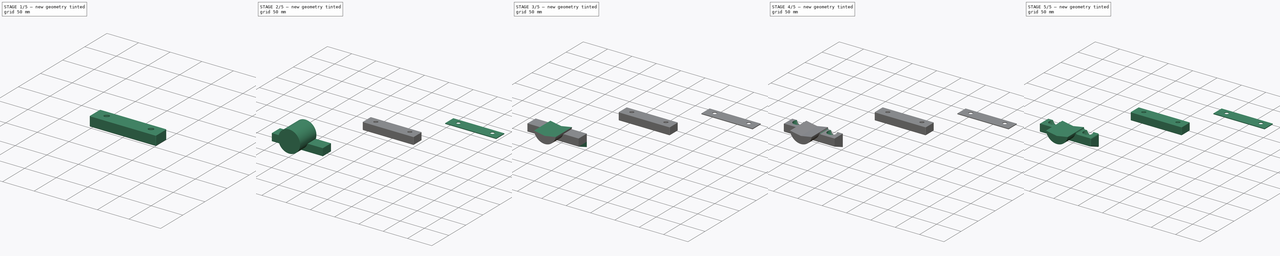
[diagram: build sequence overview — one tinted view per stage of 5, left to right]
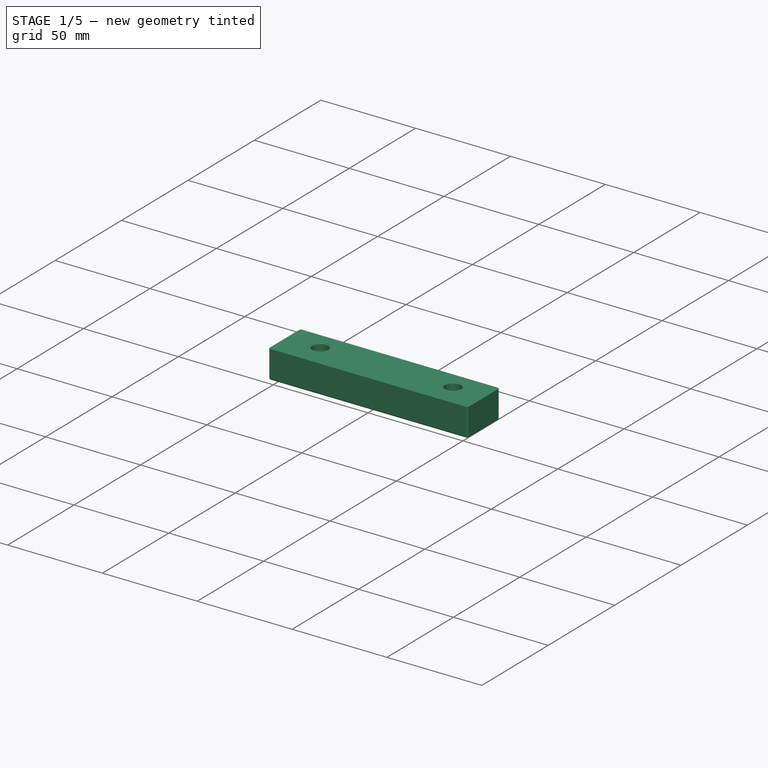
[diagram: stage 1 of 5 — iso view after this stage's code; geometry added in this stage tinted green]
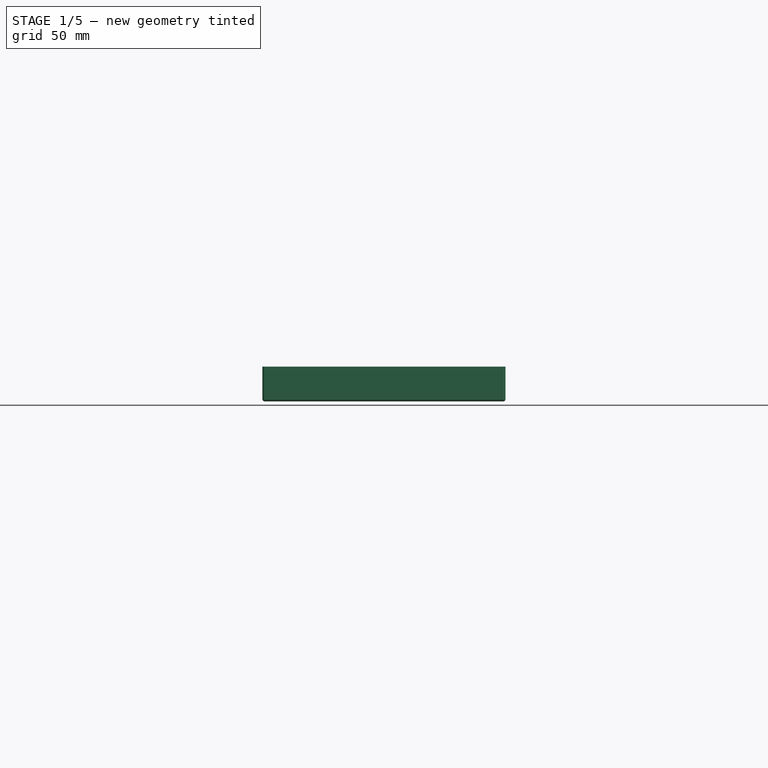
[diagram: stage 1 of 5 — front view after this stage's code; geometry added in this stage tinted green]
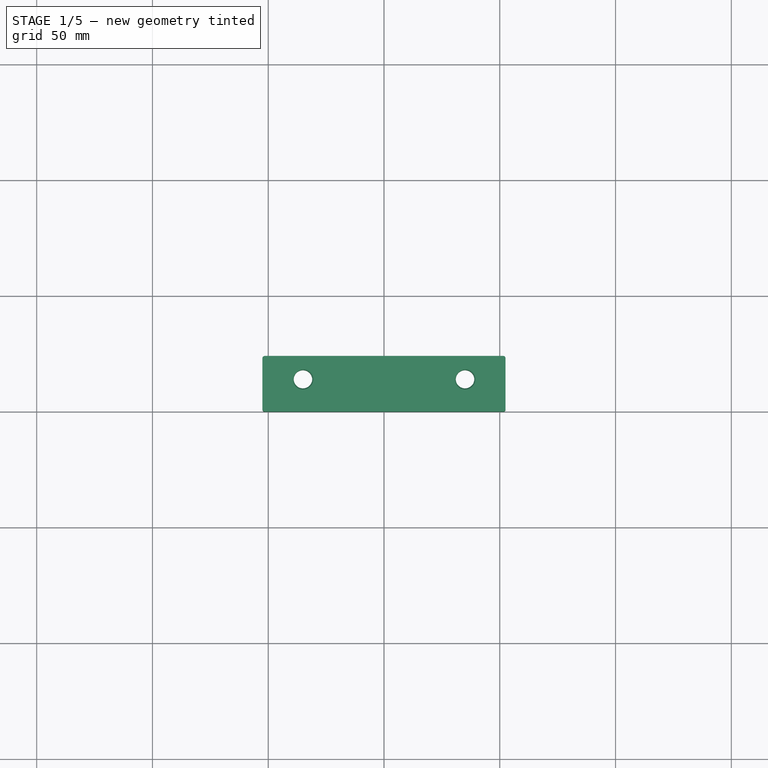
[diagram: stage 1 of 5 — top view after this stage's code; geometry added in this stage tinted green]
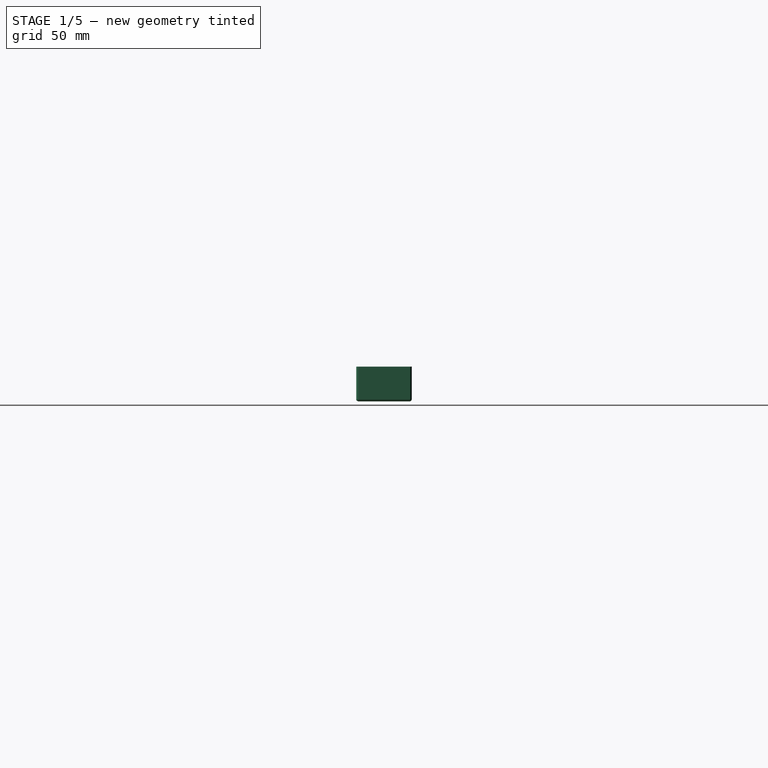
[diagram: stage 1 of 5 — right view after this stage's code; geometry added in this stage tinted green]
FCSTD DOCUMENT  (FreeCAD 2022.625R14555 (Git shallow))
Label: mast_mount
License: All rights reserved
LicenseURL: http://en.wikipedia.org/wiki/All_rights_reserved
objects: Sketcher::SketchObject×8, PartDesign::Pad×7, PartDesign::Fillet×4, PartDesign::Chamfer×3, PartDesign::Body×3, Spreadsheet::Sheet×1, PartDesign::Hole×1
note: 56 computed .brp shape members not serialized (recipe doc carries the construction recipe); baked Part::Feature solids carry a one-line shape summary decoded from their .brp

FEATURE [PartDesign::Body] Body  label="mast_mount"
  AutoGroupSolids = false
  ClaimAllChildren = false
  ExportMode = 0
  Group = -> [Sketch,Pad,Sketch001,Pad001,Sketch002,Pad002,Sketch003,Pad003,Sketch004,Pad004,Sketch005,Hole,Fillet,Fillet001,Fillet002,Chamfer,Chamfer001]
  Origin = -> Origin
  Tip = -> Chamfer001
  TreeRank = 11
  _ExportChildren = -> [Pad,Pad001,Pad002,Pad003,Pad004,Hole,Fillet,Fillet001,Fillet002,Chamfer,Chamfer001]
  _GroupVersion = 1
FEATURE [Sketcher::SketchObject] Sketch006
  ArcFitTolerance = 1e-06
  AttachmentOffset = pos=(100,100,0) rot=(0,0,1;0rad)
  AttachmentSupport = -> [XY_Plane001]
  FullyConstrained = true
  MapMode = 5
  Placement = pos=(100,100,0) rot=(0,0,1;0rad)
  Support = -> [XY_Plane001]
  TreeRank = 39
  expr: Constraints[12] = <<measurements>>.screw_distance_top
  expr: Constraints[13] = <<measurements>>.screw_distance_x
  expr: Constraints[14] = <<measurements>>.screw_dia
  expr: Constraints[8] = <<measurements>>.mount_y
  expr: Constraints[9] = <<measurements>>.mount_x
  sketch-geometry (6):
    g0: LineSegment StartX=-52.5 StartY=0 StartZ=0 EndX=52.5 EndY=0 EndZ=0
    g1: LineSegment StartX=52.5 StartY=0 StartZ=0 EndX=52.5 EndY=24 EndZ=0
    g2: LineSegment StartX=52.5 StartY=24 StartZ=0 EndX=-52.5 EndY=24 EndZ=0
    g3: LineSegment StartX=-52.5 StartY=24 StartZ=0 EndX=-52.5 EndY=0 EndZ=0
    g4: Circle CenterX=-35 CenterY=14 CenterZ=0 NormalX=0 NormalY=0 NormalZ=1 AngleXU=0 Radius=4
    g5: Circle CenterX=35 CenterY=14 CenterZ=0 NormalX=0 NormalY=0 NormalZ=1 AngleXU=0 Radius=4
  constraints (16):
    c: Coincident(g0,g1)
    c: Coincident(g1,g2)
    c: Coincident(g2,g3)
    c: Coincident(g3,g0)
    c: Horizontal(g0)
    c: Horizontal(g2)
    c: Vertical(g1)
    c: Vertical(g3)
    c: DistanceY(g1,g1) = 24
    c: DistanceX(g2,g2) = 105
    c: Symmetric(g0,g0,g-1)
    c: Symmetric(g4,g5,g-2)
    c: DistanceY(g5,g1) = 10
    c: DistanceX(g4,g5) = 70
    c: Diameter(g5) = 8
    c: Equal(g4,g5)
FEATURE [PartDesign::Pad] Pad005
  AddSubType = 0
  AlongSketchNormal = false
  CheckUpToFaceLimits = true
  ClaimChildren = false
  Direction = (0,0,1)
  Fit = 0
  FitJoin = 0
  InnerFit = 0
  InnerFitJoin = 0
  InnerTaperAngle = 0
  InnerTaperAngleRev = 0
  Length = 15
  Length2 = 100
  Linearize = true
  NewSolid = false
  Profile = -> Sketch006
  Suppress = false
  TreeRank = 40
  Type = 0
  _ProfileBasedVersion = 1
FEATURE [PartDesign::Chamfer] Chamfer002
  AddSubType = 0
  Angle = 45
  Base = -> Pad005 [Edge17,Edge14,Edge15,Edge18]
  BaseFeature = -> Pad005
  ChamferType = 0
  FlipDirection = false
  NewSolid = false
  Size = 0.5
  Size2 = 1
  SupportTransform = false
  Suppress = false
  TreeRank = 41
FEATURE [PartDesign::Body] Body002
  AutoGroupSolids = false
  ClaimAllChildren = false
  ExportMode = 0
  Group = -> [Sketch007,Pad006]
  Origin = -> Origin002
  Tip = -> Pad006
  TreeRank = 52
  _ExportChildren = -> [Pad006]
  _GroupVersion = 1
FEATURE [PartDesign::Fillet] Fillet003
  AddSubType = 0
  Base = -> Chamfer002 [Edge21,Edge22,Edge10,Edge9,Edge11,Edge20,Edge23,Edge12]
  BaseFeature = -> Chamfer002
  NewSolid = false
  Radius = 1
  SupportTransform = false
  Suppress = false
  TreeRank = 55
FEATURE [PartDesign::Body] Body001  label="m8_rod_mount_helper"
  AutoGroupSolids = false
  ClaimAllChildren = false
  ExportMode = 0
  Group = -> [Sketch006,Pad005,Chamfer002,Fillet003]
  Origin = -> Origin001
  Tip = -> Fillet003
  TreeRank = 38
  _ExportChildren = -> [Pad005,Chamfer002,Fillet003]
  _GroupVersion = 1
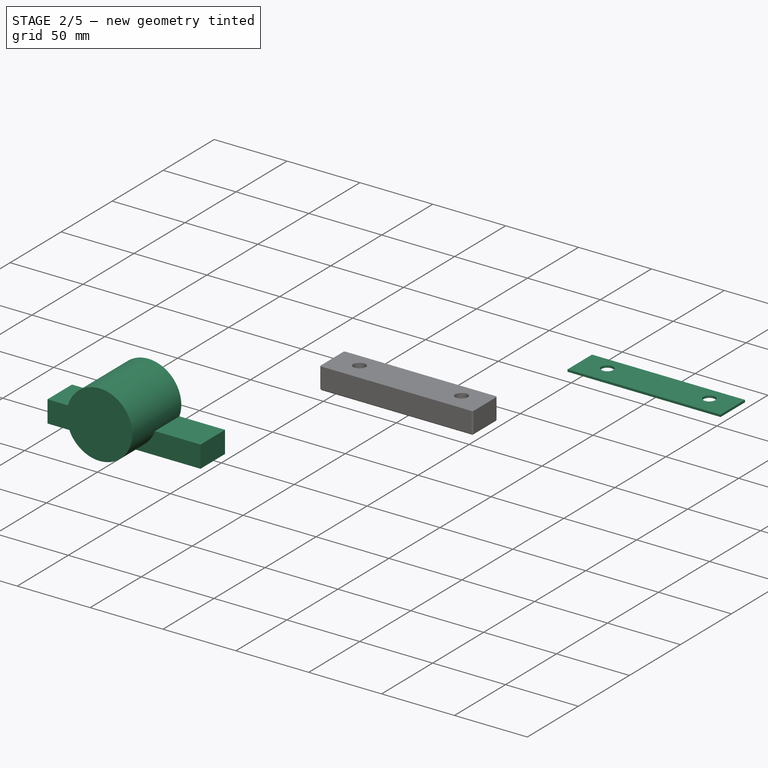
[diagram: stage 2 of 5 — iso view after this stage's code; geometry added in this stage tinted green]
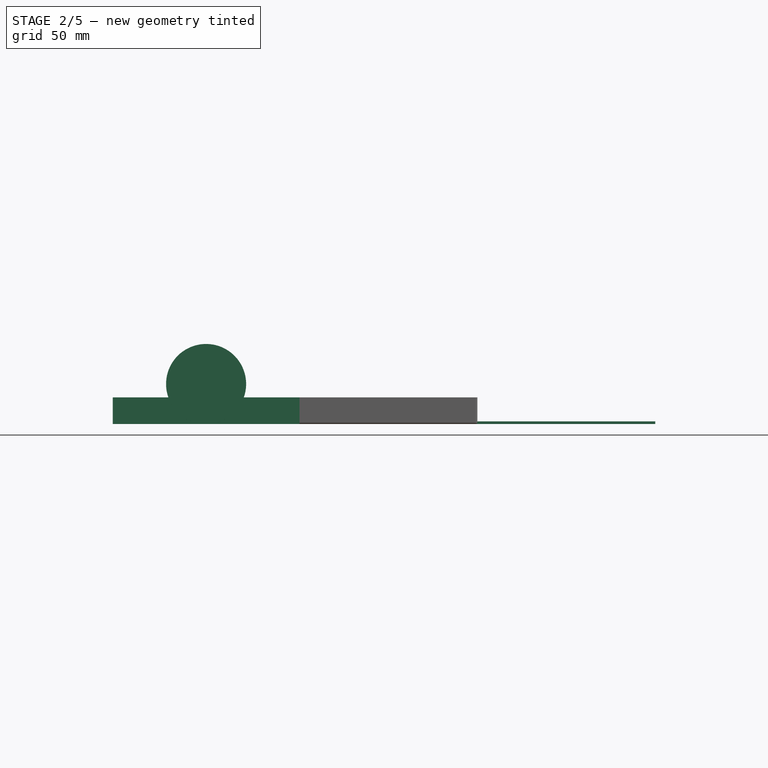
[diagram: stage 2 of 5 — front view after this stage's code; geometry added in this stage tinted green]
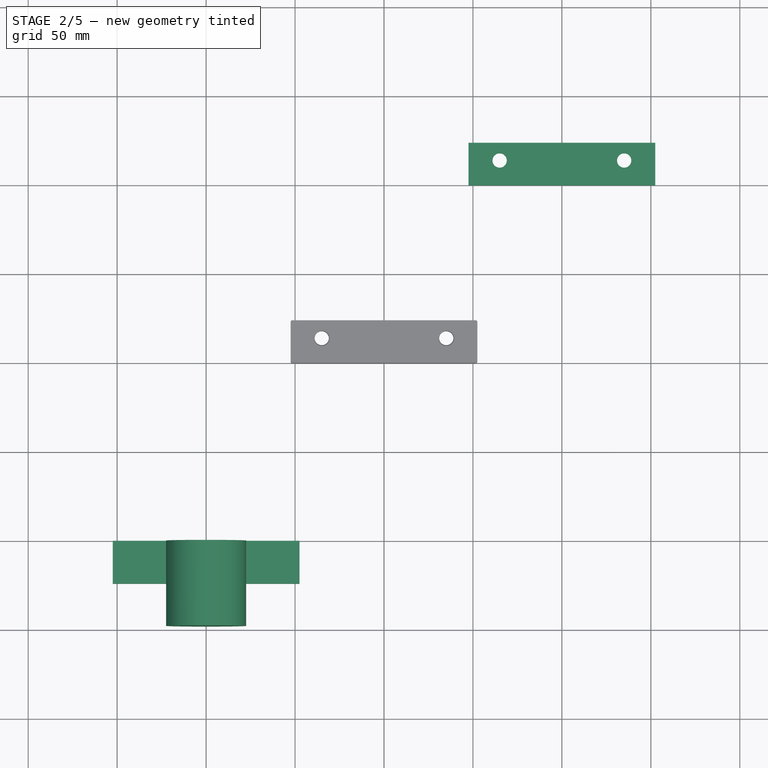
[diagram: stage 2 of 5 — top view after this stage's code; geometry added in this stage tinted green]
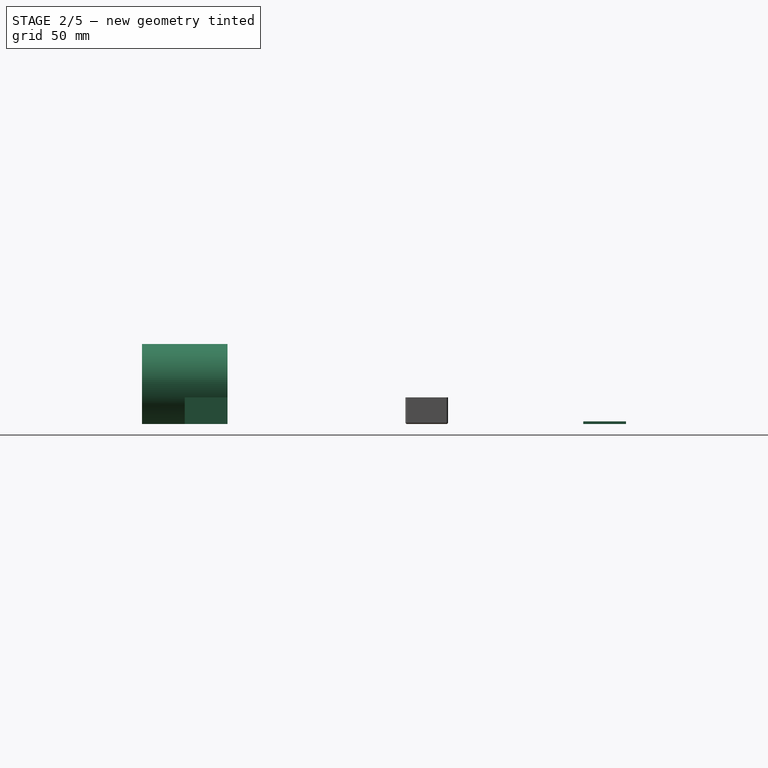
[diagram: stage 2 of 5 — right view after this stage's code; geometry added in this stage tinted green]
FEATURE [Spreadsheet::Sheet] Spreadsheet  label="measurements"
  PythonMode = false
  ShowCells = 0
  TreeRank = 1
  cells = A1=panel_x; B1(panel_x)=175; A2=panel_y; B2(panel_y)=270; A3=screw_distance_x; B3(screw_distance_x)=70; A4=screw_distance_y; B4(screw_distance_y)=250; A5=screw_dia; B5(screw_dia)=8; A6=mount_x; B6(mount_x)==B3 * 1.5; A7=mount_y; B7(mount_y)==B5 * 3; A8=mount_z; B8(mount_z)=15; A9=angle; B9(angle)=22.5; A10=dia; B10(dia)=45; A11=screw_distance_top; B11(screw_distance_top)=10; A12=m8_flat; B12(m8_flat)=16
FEATURE [Sketcher::SketchObject] Sketch
  ArcFitTolerance = 1e-06
  AttachmentSupport = -> [XZ_Plane]
  FullyConstrained = true
  MapMode = 5
  Placement = pos=(0,0,0) rot=(1,0,0;1.5708rad)
  Support = -> [XZ_Plane]
  TreeRank = 12
  expr: Constraints[13] = <<measurements>>.mount_z
  expr: Constraints[2] = <<measurements>>.mount_x
  expr: Constraints[8] = <<measurements>>.mount_z
  sketch-geometry (5):
    g0: LineSegment StartX=-52.5 StartY=0 StartZ=0 EndX=52.5 EndY=8.3e-15 EndZ=0
    g1: LineSegment StartX=-52.5 StartY=0 StartZ=0 EndX=-52.5 EndY=15 EndZ=0
    g2: LineSegment StartX=52.5 StartY=8.3e-15 StartZ=0 EndX=52.5 EndY=15 EndZ=0
    g3: LineSegment StartX=-52.5 StartY=15 StartZ=0 EndX=0 EndY=15 EndZ=0
    g4: LineSegment StartX=0 StartY=15 StartZ=0 EndX=52.5 EndY=15 EndZ=0
  constraints (14):
    c: PointOnObject(g0,g-1)
    c: Symmetric(g0,g0,g-1)
    c: DistanceX(g0,g0) = 105
    c: Coincident(g1,g0)
    c: Vertical(g1)
    c: Coincident(g2,g0)
    c: Vertical(g2)
    c: Equal(g2,g1)
    c: DistanceY(g1,g1) = 15
    c: Coincident(g3,g1)
    c: PointOnObject(g3,g-2)
    c: Coincident(g4,g3)
    c: Coincident(g4,g2)
    c: DistanceY(g-1,g4) = 15
FEATURE [PartDesign::Pad] Pad
  AddSubType = 0
  AlongSketchNormal = false
  CheckUpToFaceLimits = true
  ClaimChildren = false
  Direction = (0,-1,-2e-16)
  Fit = 0
  FitJoin = 0
  InnerFit = 0
  InnerFitJoin = 0
  InnerTaperAngle = 0
  InnerTaperAngleRev = 0
  Length = 24
  Length2 = 100
  Linearize = true
  NewSolid = false
  Placement = pos=(0,0,0) rot=(1,0,0;1.5708rad)
  Profile = -> Sketch
  Suppress = false
  TreeRank = 13
  Type = 0
  _ProfileBasedVersion = 1
  expr: Length = <<measurements>>.mount_y
FEATURE [Sketcher::SketchObject] Sketch001
  ArcFitTolerance = 1e-06
  AttachmentSupport = -> [XZ_Plane]
  FullyConstrained = true
  MapMode = 5
  Placement = pos=(0,0,0) rot=(1,0,0;1.5708rad)
  Support = -> [XZ_Plane]
  TreeRank = 14
  expr: Constraints[2] = <<measurements>>.dia / 2
  sketch-geometry (1):
    g0: Circle CenterX=0 CenterY=22.5 CenterZ=0 NormalX=0 NormalY=0 NormalZ=1 AngleXU=0 Radius=22.5
  constraints (3):
    c: PointOnObject(g0,g-2)
    c: PointOnObject(g-1,g0)
    c: DistanceY(g-1,g0) = 22.5
FEATURE [PartDesign::Pad] Pad001
  AddSubType = 0
  AlongSketchNormal = false
  BaseFeature = -> Pad
  CheckUpToFaceLimits = true
  ClaimChildren = false
  Direction = (0,-1,-2e-16)
  Fit = 0
  FitJoin = 0
  InnerFit = 0
  InnerFitJoin = 0
  InnerTaperAngle = 0
  InnerTaperAngleRev = 0
  Length = 48
  Length2 = 100
  Linearize = true
  NewSolid = false
  Placement = pos=(0,0,0) rot=(1,0,0;1.5708rad)
  Profile = -> Sketch001
  Suppress = false
  TreeRank = 15
  Type = 0
  _ProfileBasedVersion = 1
  expr: Length = <<measurements>>.mount_y * 2
FEATURE [Sketcher::SketchObject] Sketch007
  ArcFitTolerance = 1e-06
  AttachmentOffset = pos=(200,200,0) rot=(0,0,1;0rad)
  AttachmentSupport = -> [XY_Plane002]
  FullyConstrained = true
  MapMode = 5
  Placement = pos=(200,200,0) rot=(0,0,1;0rad)
  Support = -> [XY_Plane002]
  TreeRank = 53
  expr: Constraints[12] = <<measurements>>.screw_distance_top
  expr: Constraints[13] = <<measurements>>.screw_distance_x
  expr: Constraints[14] = <<measurements>>.screw_dia
  expr: Constraints[8] = <<measurements>>.mount_y
  expr: Constraints[9] = <<measurements>>.mount_x
  sketch-geometry (6):
    g0: LineSegment StartX=-52.5 StartY=0 StartZ=0 EndX=52.5 EndY=0 EndZ=0
    g1: LineSegment StartX=52.5 StartY=0 StartZ=0 EndX=52.5 EndY=24 EndZ=0
    g2: LineSegment StartX=52.5 StartY=24 StartZ=0 EndX=-52.5 EndY=24 EndZ=0
    g3: LineSegment StartX=-52.5 StartY=24 StartZ=0 EndX=-52.5 EndY=0 EndZ=0
    g4: Circle CenterX=-35 CenterY=14 CenterZ=0 NormalX=0 NormalY=0 NormalZ=1 AngleXU=0 Radius=4
    g5: Circle CenterX=35 CenterY=14 CenterZ=0 NormalX=0 NormalY=0 NormalZ=1 AngleXU=0 Radius=4
  constraints (16):
    c: Coincident(g0,g1)
    c: Coincident(g1,g2)
    c: Coincident(g2,g3)
    c: Coincident(g3,g0)
    c: Horizontal(g0)
    c: Horizontal(g2)
    c: Vertical(g1)
    c: Vertical(g3)
    c: DistanceY(g1,g1) = 24
    c: DistanceX(g2,g2) = 105
    c: Symmetric(g0,g0,g-1)
    c: Symmetric(g4,g5,g-2)
    c: DistanceY(g5,g1) = 10
    c: DistanceX(g4,g5) = 70
    c: Diameter(g5) = 8
    c: Equal(g4,g5)
FEATURE [PartDesign::Pad] Pad006
  AddSubType = 0
  AlongSketchNormal = false
  CheckUpToFaceLimits = true
  ClaimChildren = false
  Direction = (0,0,1)
  Fit = 0
  FitJoin = 0
  InnerFit = 0
  InnerFitJoin = 0
  InnerTaperAngle = 0
  InnerTaperAngleRev = 0
  Length = 1.5
  Length2 = 100
  Linearize = true
  NewSolid = false
  Profile = -> Sketch007
  Suppress = false
  TreeRank = 54
  Type = 0
  _ProfileBasedVersion = 1
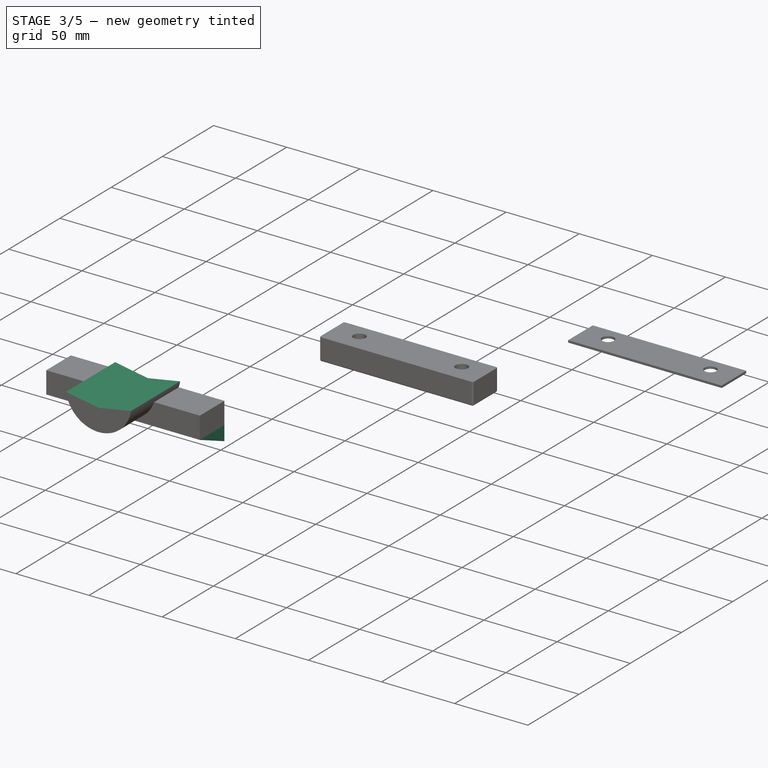
[diagram: stage 3 of 5 — iso view after this stage's code; geometry added in this stage tinted green]
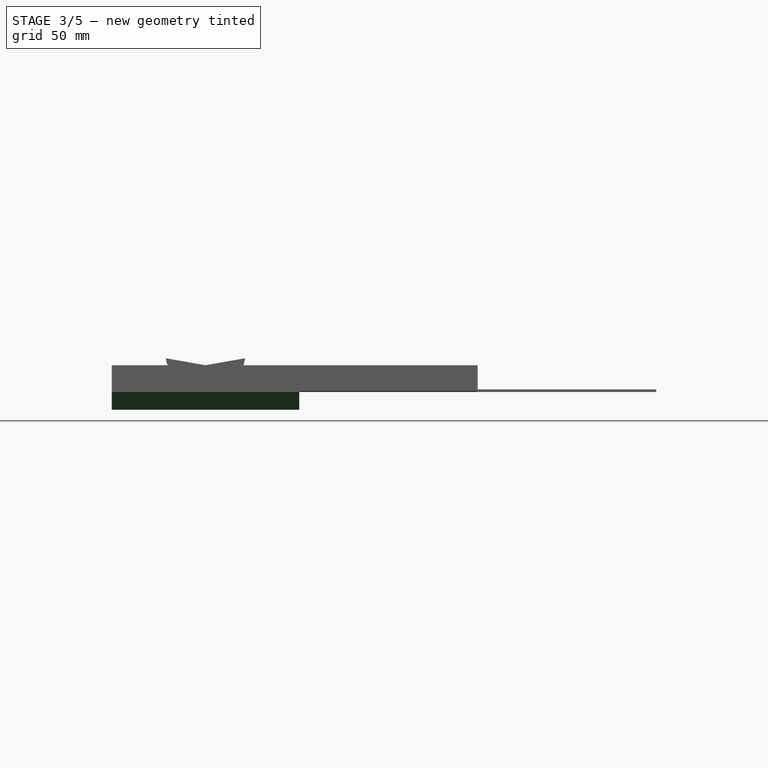
[diagram: stage 3 of 5 — front view after this stage's code; geometry added in this stage tinted green]
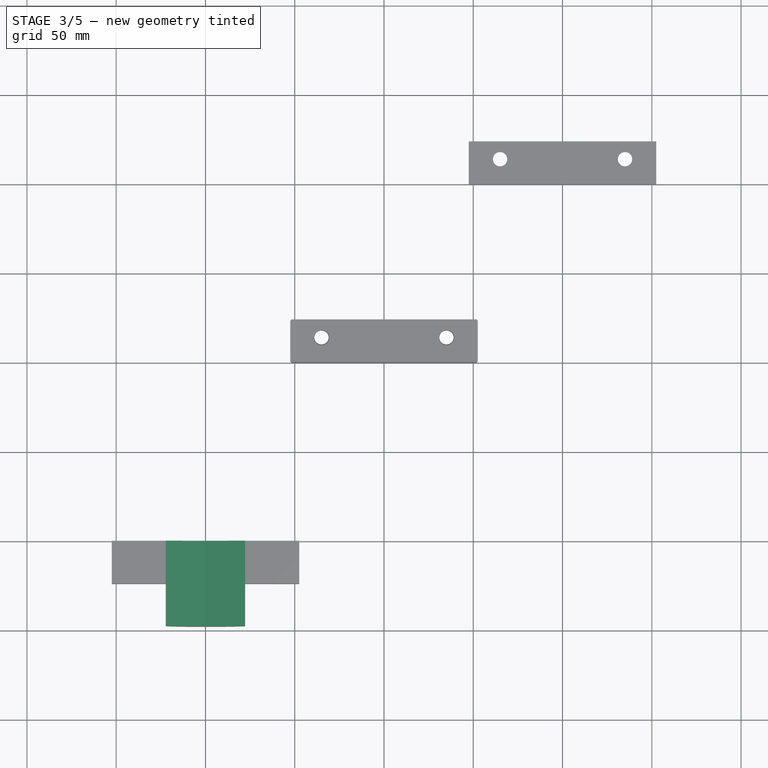
[diagram: stage 3 of 5 — top view after this stage's code; geometry added in this stage tinted green]
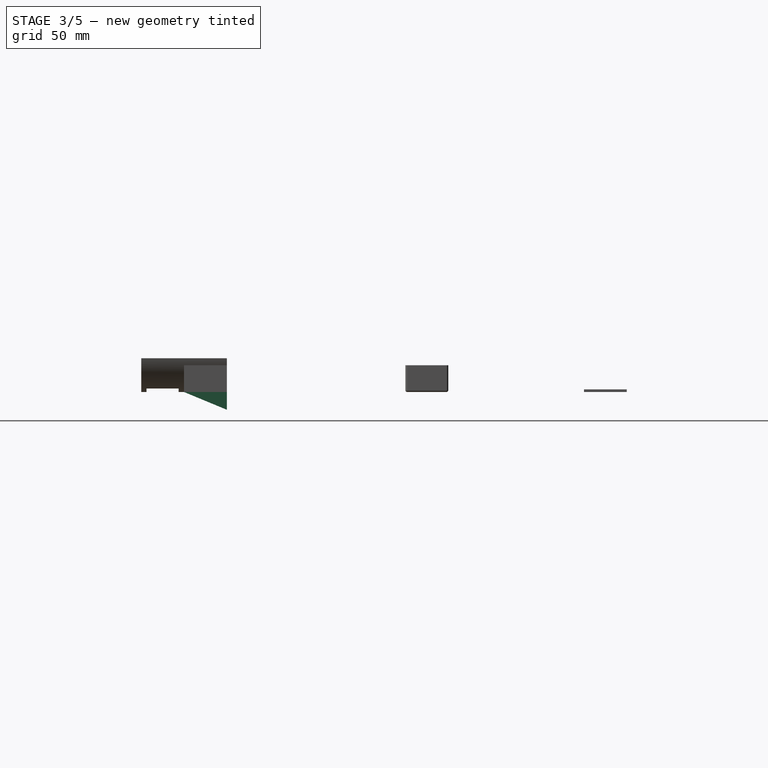
[diagram: stage 3 of 5 — right view after this stage's code; geometry added in this stage tinted green]
FEATURE [Sketcher::SketchObject] Sketch002
  ArcFitTolerance = 1e-06
  AttachmentSupport = -> [XZ_Plane]
  FullyConstrained = true
  MapMode = 5
  Placement = pos=(0,0,0) rot=(1,0,0;1.5708rad)
  Support = -> [XZ_Plane]
  TreeRank = 16
  expr: Constraints[13] = <<measurements>>.dia
  expr: Constraints[3] = <<measurements>>.mount_z
  expr: Constraints[5] = <<measurements>>.mount_x / 2
  sketch-geometry (5):
    g0: LineSegment StartX=0 StartY=15 StartZ=0 EndX=52.5 EndY=24.2572 EndZ=0
    g1: LineSegment StartX=0 StartY=15 StartZ=0 EndX=-52.5 EndY=24.2572 EndZ=0
    g2: LineSegment StartX=-52.5 StartY=24.2572 StartZ=0 EndX=-52.5 EndY=69.2572 EndZ=0
    g3: LineSegment StartX=-52.5 StartY=69.2572 StartZ=0 EndX=52.5 EndY=69.2572 EndZ=0
    g4: LineSegment StartX=52.5 StartY=69.2572 StartZ=0 EndX=52.5 EndY=24.2572 EndZ=0
  constraints (14):
    c: PointOnObject(g0,g-2)
    c: Coincident(g1,g0)
    c: Angle(g0,g1) = 2.79253
    c: DistanceY(g-1,g0) = 15
    c: Symmetric(g0,g1,g-2)
    c: DistanceX(g0,g0) = 52.5
    c: Coincident(g2,g1)
    c: Vertical(g2)
    c: Coincident(g3,g2)
    c: Horizontal(g3)
    c: Coincident(g4,g3)
    c: Coincident(g4,g0)
    c: Vertical(g4)
    c: DistanceY(g4,g4) = 45
FEATURE [PartDesign::Pad] Pad002
  AddSubType = 1
  AlongSketchNormal = false
  BaseFeature = -> Pad001
  CheckUpToFaceLimits = true
  ClaimChildren = false
  Direction = (0,-1,-2e-16)
  Fit = 0
  FitJoin = 0
  InnerFit = 0
  InnerFitJoin = 0
  InnerTaperAngle = 0
  InnerTaperAngleRev = 0
  Length = 48
  Length2 = 100
  Linearize = true
  NewSolid = false
  Placement = pos=(0,0,0) rot=(1,0,0;1.5708rad)
  Profile = -> Sketch002
  Suppress = false
  TreeRank = 17
  Type = 0
  _ProfileBasedVersion = 1
  expr: Length = <<measurements>>.mount_y * 2
FEATURE [Sketcher::SketchObject] Sketch003
  ArcFitTolerance = 1e-06
  AttachmentOffset = pos=(-24,0,0) rot=(0,0,1;0rad)
  AttachmentSupport = -> [YZ_Plane]
  FullyConstrained = true
  MapMode = 5
  Placement = pos=(-5.3e-15,-24,5.3e-15) rot=(0.57735,0.57735,0.57735;2.0944rad)
  Support = -> [YZ_Plane]
  TreeRank = 18
  expr: AttachmentOffset.Base.x = -<<measurements>>.mount_y
  expr: Constraints[10] = <<measurements>>.mount_y / 4 * 3
  expr: Constraints[9] = <<measurements>>.mount_y / 8
  sketch-geometry (4):
    g0: LineSegment StartX=-21 StartY=0 StartZ=0 EndX=-3 EndY=0 EndZ=0
    g1: LineSegment StartX=-3 StartY=0 StartZ=0 EndX=-3 EndY=2 EndZ=0
    g2: LineSegment StartX=-3 StartY=2 StartZ=0 EndX=-21 EndY=2 EndZ=0
    g3: LineSegment StartX=-21 StartY=2 StartZ=0 EndX=-21 EndY=0 EndZ=0
  constraints (12):
    c: Coincident(g0,g1)
    c: Coincident(g1,g2)
    c: Coincident(g2,g3)
    c: Coincident(g3,g0)
    c: Horizontal(g0)
    c: Horizontal(g2)
    c: Vertical(g1)
    c: Vertical(g3)
    c: PointOnObject(g0,g-1)
    c: DistanceX(g0,g-1) = 3
    c: DistanceX(g2,g2) = 18
    c: DistanceY(g1,g1) = 2
FEATURE [PartDesign::Pad] Pad003
  AddSubType = 1
  AlongSketchNormal = false
  BaseFeature = -> Pad002
  CheckUpToFaceLimits = true
  ClaimChildren = false
  Direction = (1,-2e-16,3e-16)
  Fit = 0
  FitJoin = 0
  InnerFit = 0
  InnerFitJoin = 0
  InnerTaperAngle = 0
  InnerTaperAngleRev = 0
  Length = 45
  Length2 = 100
  Linearize = true
  Midplane = true
  NewSolid = false
  Placement = pos=(0,0,0) rot=(1,0,0;1.5708rad)
  Profile = -> Sketch003
  Suppress = false
  TreeRank = 19
  Type = 0
  _ProfileBasedVersion = 1
  expr: Length = <<measurements>>.dia
FEATURE [Sketcher::SketchObject] Sketch004
  ArcFitTolerance = 1e-06
  AttachmentSupport = -> [YZ_Plane]
  FullyConstrained = true
  MapMode = 5
  Placement = pos=(0,0,0) rot=(0.57735,0.57735,0.57735;2.0944rad)
  Support = -> [YZ_Plane]
  TreeRank = 20
  expr: Constraints[2] = <<measurements>>.mount_y
  expr: Constraints[5] = <<measurements>>.angle
  sketch-geometry (3):
    g0: LineSegment StartX=0 StartY=0 StartZ=0 EndX=-24 EndY=0 EndZ=0
    g1: LineSegment StartX=-24 StartY=0 StartZ=0 EndX=0 EndY=-9.94113 EndZ=0
    g2: LineSegment StartX=0 StartY=0 StartZ=0 EndX=0 EndY=-9.94113 EndZ=0
  constraints (8):
    c: Coincident(g0,g-1)
    c: PointOnObject(g0,g-1)
    c: DistanceX(g0,g0) = 24
    c: Coincident(g1,g0)
    c: PointOnObject(g1,g-2)
    c: Angle(g1,g0) = 0.392699
    c: Coincident(g2,g0)
    c: Coincident(g2,g1)
FEATURE [PartDesign::Pad] Pad004
  AddSubType = 0
  AlongSketchNormal = false
  BaseFeature = -> Pad003
  CheckUpToFaceLimits = true
  ClaimChildren = false
  Direction = (1,-2e-16,3e-16)
  Fit = 0
  FitJoin = 0
  InnerFit = 0
  InnerFitJoin = 0
  InnerTaperAngle = 0
  InnerTaperAngleRev = 0
  Length = 105
  Length2 = 100
  Linearize = true
  Midplane = true
  NewSolid = false
  Placement = pos=(0,0,0) rot=(1,0,0;1.5708rad)
  Profile = -> Sketch004
  Suppress = false
  TreeRank = 21
  Type = 0
  _ProfileBasedVersion = 1
  expr: Length = <<measurements>>.mount_x
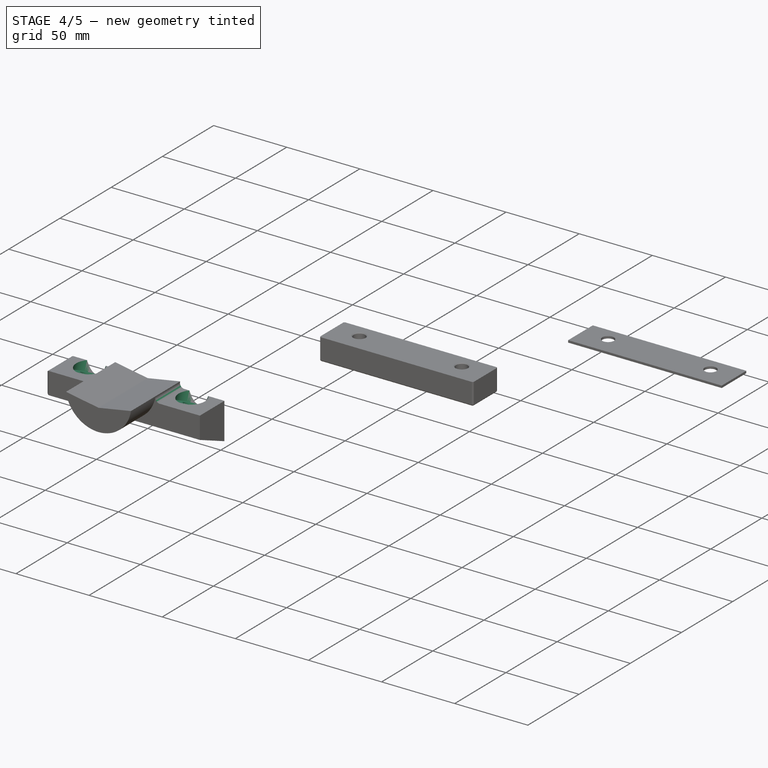
[diagram: stage 4 of 5 — iso view after this stage's code; geometry added in this stage tinted green]
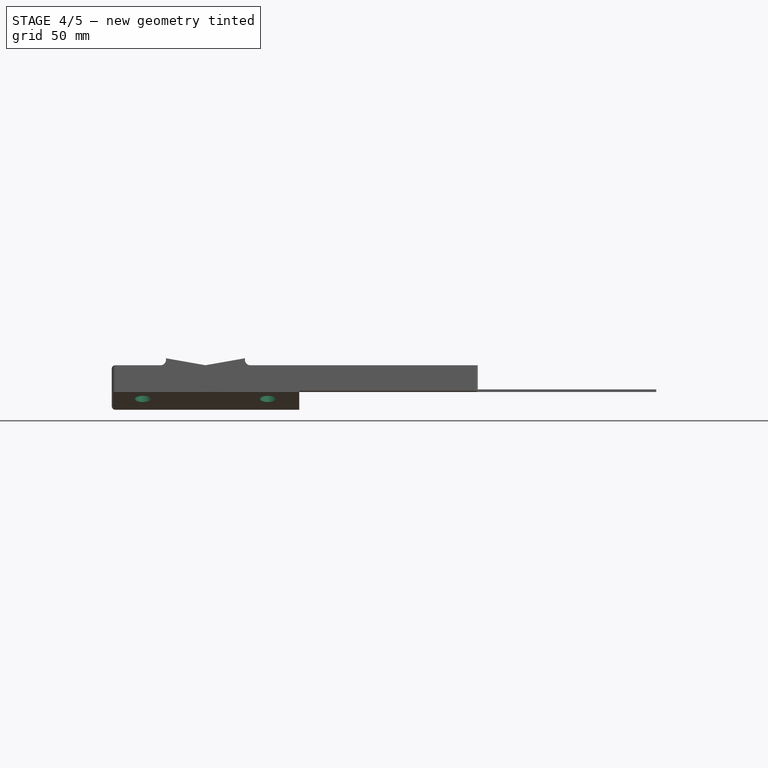
[diagram: stage 4 of 5 — front view after this stage's code; geometry added in this stage tinted green]
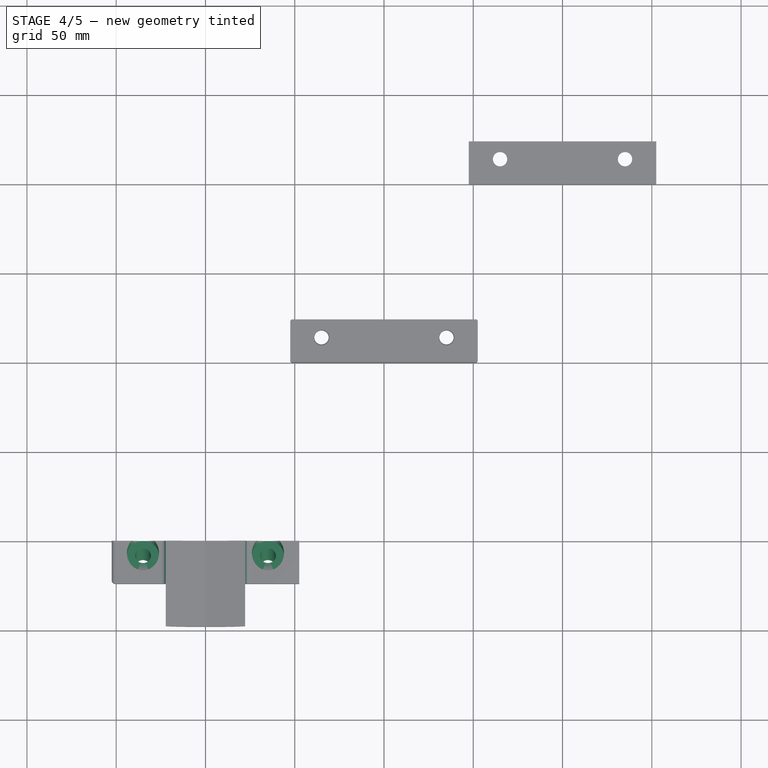
[diagram: stage 4 of 5 — top view after this stage's code; geometry added in this stage tinted green]
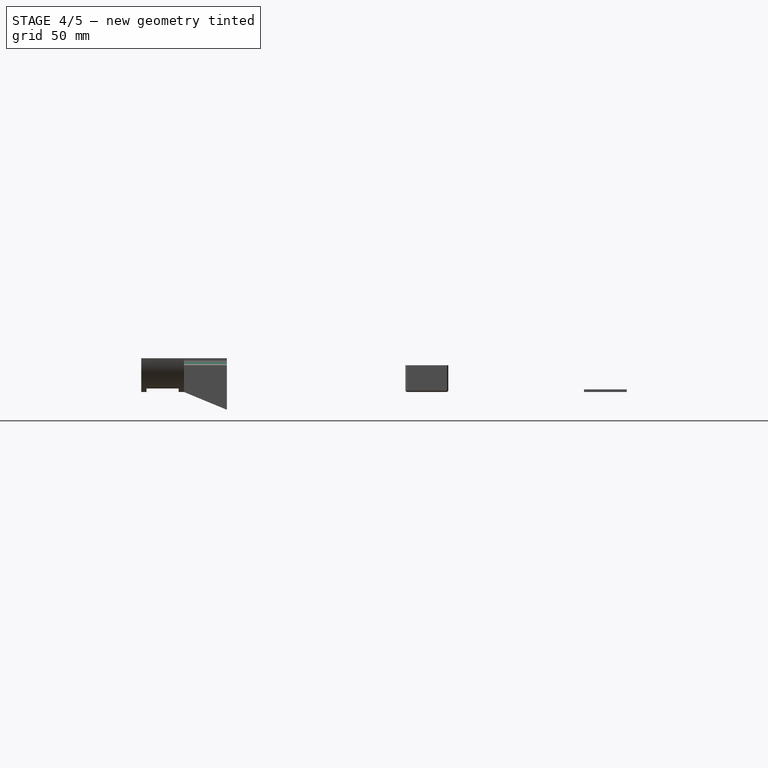
[diagram: stage 4 of 5 — right view after this stage's code; geometry added in this stage tinted green]
FEATURE [Sketcher::SketchObject] Sketch005
  ArcFitTolerance = 1e-06
  AttachmentOffset = pos=(0,-24,30) rot=(-1,0,0;0.392699rad)
  AttachmentSupport = -> [XY_Plane]
  FullyConstrained = true
  MapMode = 5
  Placement = pos=(0,-24,30) rot=(-1,0,0;0.392699rad)
  Support = -> [XY_Plane]
  TreeRank = 22
  expr: AttachmentOffset.Base.z = <<measurements>>.mount_z * 2
  expr: AttachmentOffset.Rotation.Roll = -<<measurements>>.angle
  expr: Constraints[2] = <<measurements>>.screw_distance_x
  expr: Constraints[3] = <<measurements>>.mount_y * 0.9
  expr: Constraints[4] = <<measurements>>.screw_dia
  sketch-geometry (2):
    g0: Circle CenterX=-35 CenterY=21.6 CenterZ=0 NormalX=0 NormalY=0 NormalZ=1 AngleXU=0 Radius=4
    g1: Circle CenterX=35 CenterY=21.6 CenterZ=0 NormalX=0 NormalY=0 NormalZ=1 AngleXU=0 Radius=4
  constraints (5):
    c: Equal(g1,g0)
    c: Symmetric(g0,g1,g-2)
    c: DistanceX(g0,g1) = 70
    c: DistanceY(g-1,g1) = 21.6
    c: Diameter(g1) = 8
FEATURE [PartDesign::Hole] Hole
  AddSubType = 1
  BaseFeature = -> Pad004
  ClaimChildren = false
  CustomThreadClearance = 0
  Depth = 25
  DepthType = 1
  Diameter = 9
  DrillForDepth = false
  DrillPoint = 1
  DrillPointAngle = 118
  Fit = 0
  FitJoin = 0
  HoleCutCountersinkAngle = 90
  HoleCutCustomValues = true
  HoleCutDepth = 11.1
  HoleCutDiameter = 18
  HoleCutType = 1
  InnerFit = 0
  InnerFitJoin = 0
  Linearize = true
  ModelThread = false
  NewSolid = false
  Placement = pos=(0,0,0) rot=(1,0,0;1.5708rad)
  Profile = -> Sketch005
  Suppress = false
  Tapered = false
  TaperedAngle = 90
  ThreadClass = 0
  ThreadDepth = 214.224
  ThreadDepthType = 0
  ThreadDirection = 0
  ThreadFit = 0
  ThreadSize = 16
  ThreadType = 1
  Threaded = false
  TreeRank = 23
  UseCustomThreadClearance = false
  _ProfileBasedVersion = 1
  expr: HoleCutDiameter = <<measurements>>.m8_flat + 2
FEATURE [PartDesign::Fillet] Fillet
  AddSubType = 0
  Base = -> Hole [Edge49,Edge18]
  BaseFeature = -> Hole
  NewSolid = false
  Placement = pos=(0,0,0) rot=(1,0,0;1.5708rad)
  Radius = 3
  SupportTransform = false
  Suppress = false
  TreeRank = 24
FEATURE [PartDesign::Fillet] Fillet001
  AddSubType = 0
  Base = -> Fillet [Edge62,Edge30,Edge14]
  BaseFeature = -> Fillet
  NewSolid = false
  Placement = pos=(0,0,0) rot=(1,0,0;1.5708rad)
  Radius = 2
  SupportTransform = false
  Suppress = false
  TreeRank = 25
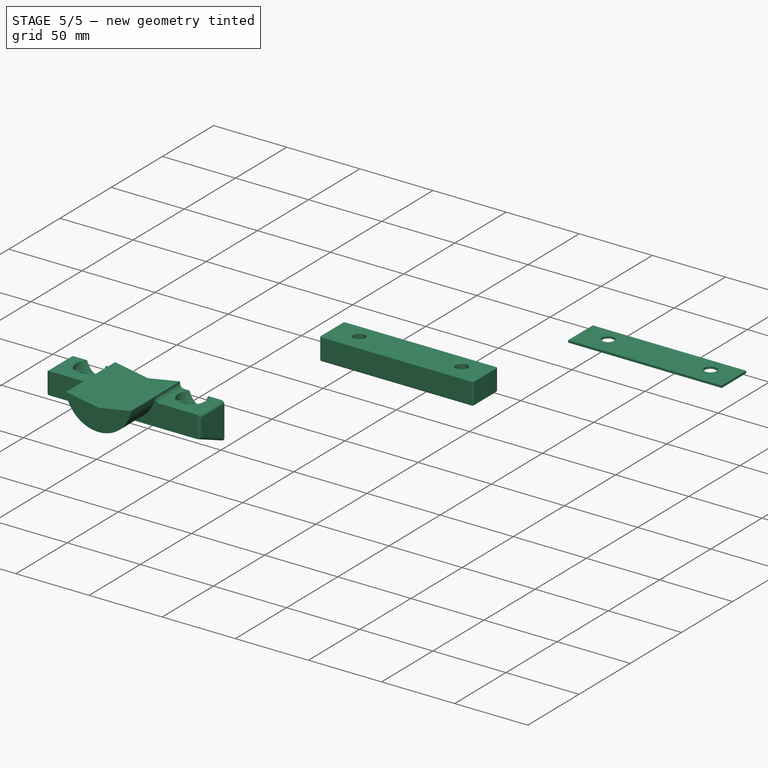
[diagram: stage 5 of 5 — iso view after this stage's code; geometry added in this stage tinted green]
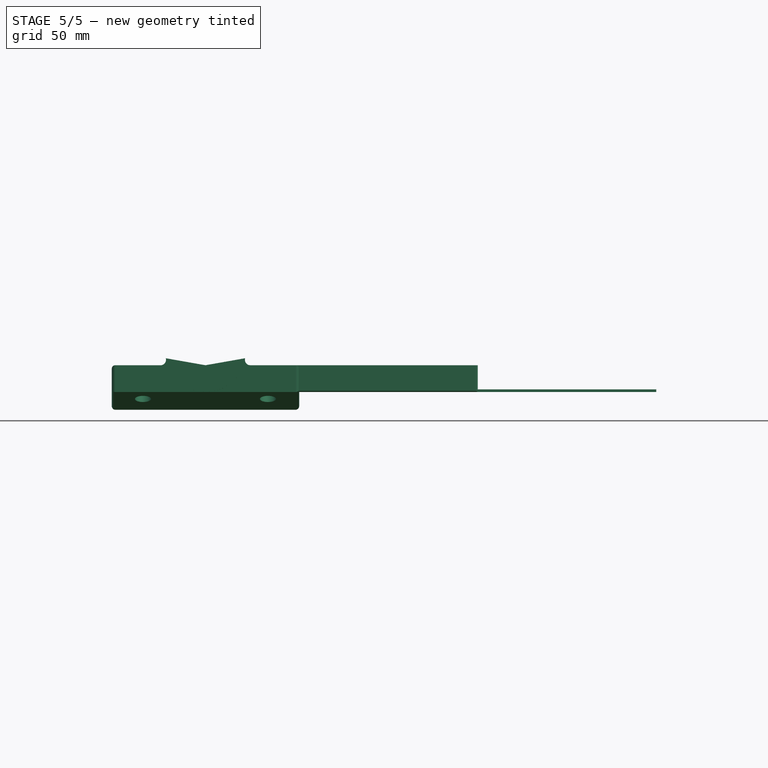
[diagram: stage 5 of 5 — front view after this stage's code; geometry added in this stage tinted green]
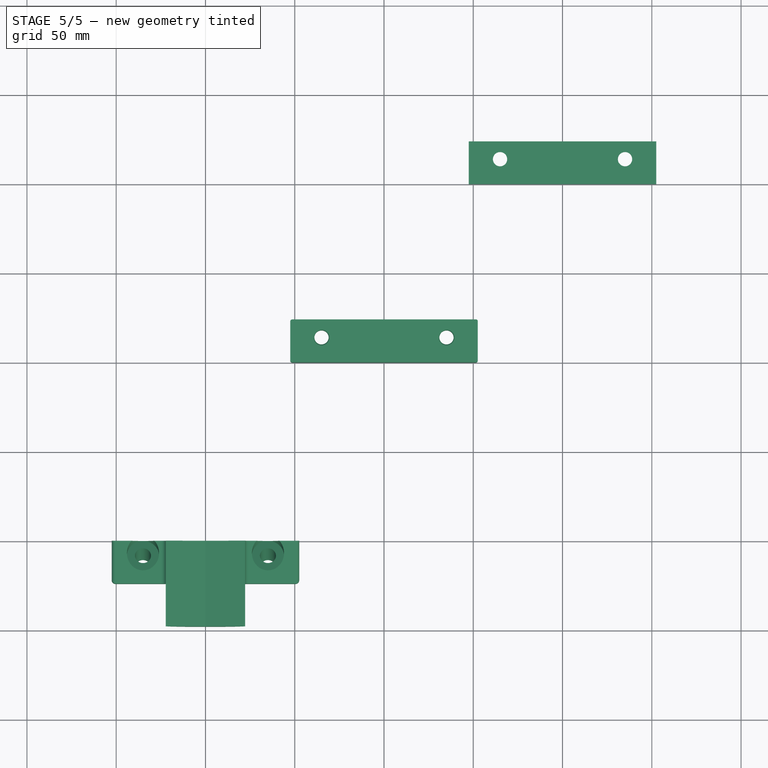
[diagram: stage 5 of 5 — top view after this stage's code; geometry added in this stage tinted green]
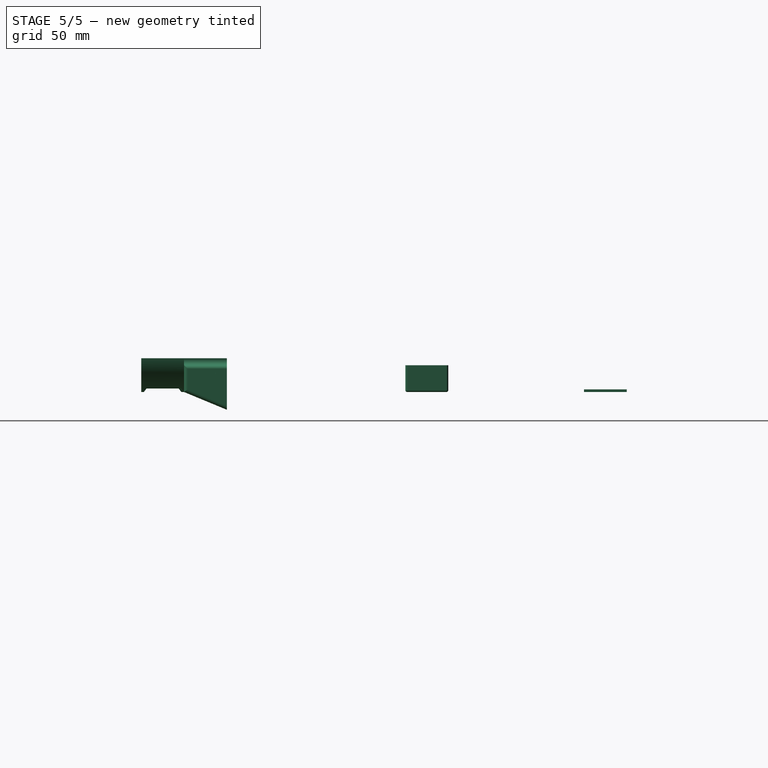
[diagram: stage 5 of 5 — right view after this stage's code; geometry added in this stage tinted green]
FEATURE [PartDesign::Fillet] Fillet002
  AddSubType = 0
  Base = -> Fillet001 [Edge44,Edge79,Edge82]
  BaseFeature = -> Fillet001
  NewSolid = false
  Placement = pos=(0,0,0) rot=(1,0,0;1.5708rad)
  Radius = 2
  SupportTransform = false
  Suppress = false
  TreeRank = 26
FEATURE [PartDesign::Chamfer] Chamfer
  AddSubType = 0
  Angle = 53
  Base = -> Fillet002 [Edge96,Edge91]
  BaseFeature = -> Fillet002
  ChamferType = 2
  FlipDirection = false
  NewSolid = false
  Placement = pos=(0,0,0) rot=(1,0,0;1.5708rad)
  Size = 1.5
  Size2 = 1
  SupportTransform = false
  Suppress = false
  TreeRank = 27
FEATURE [PartDesign::Chamfer] Chamfer001
  AddSubType = 0
  Angle = 53
  Base = -> Chamfer [Edge6,Edge4]
  BaseFeature = -> Chamfer
  ChamferType = 2
  FlipDirection = false
  NewSolid = false
  Placement = pos=(0,0,0) rot=(1,0,0;1.5708rad)
  Size = 1.5
  Size2 = 1
  SupportTransform = false
  Suppress = false
  TreeRank = 28
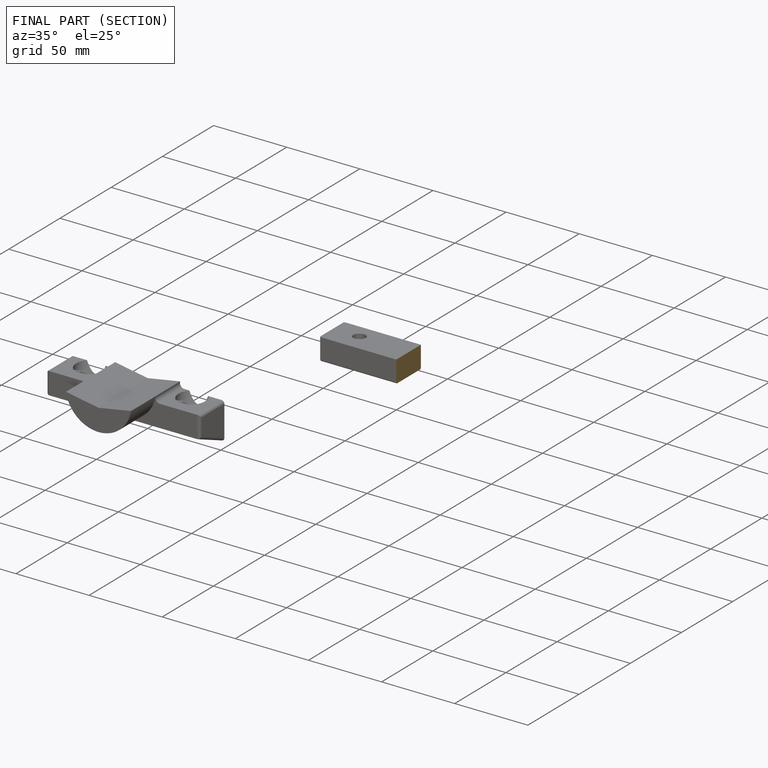
[diagram: finished part — half-section view (interior)]
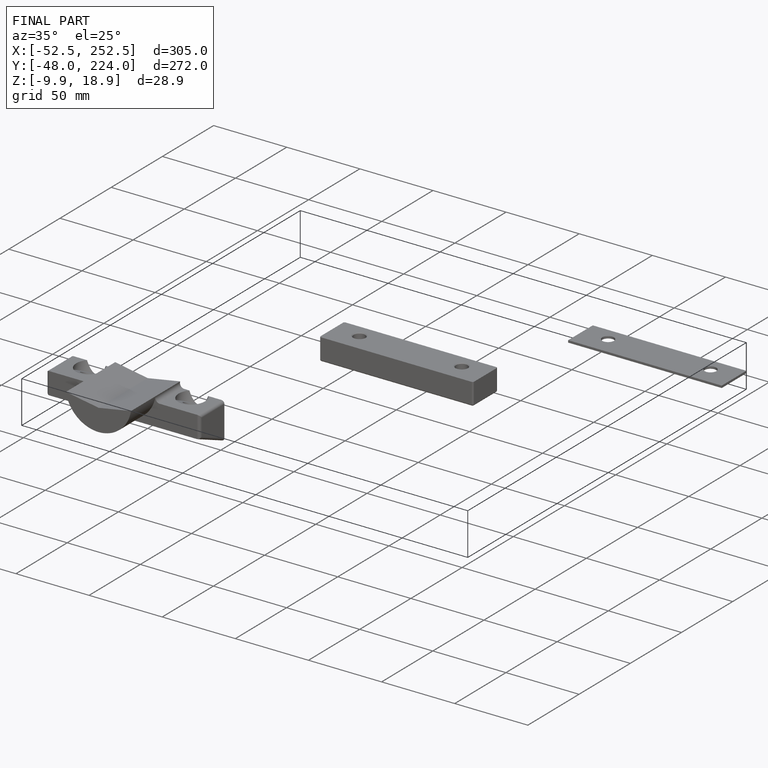
[diagram: finished part — iso view with bounding-box wireframe]
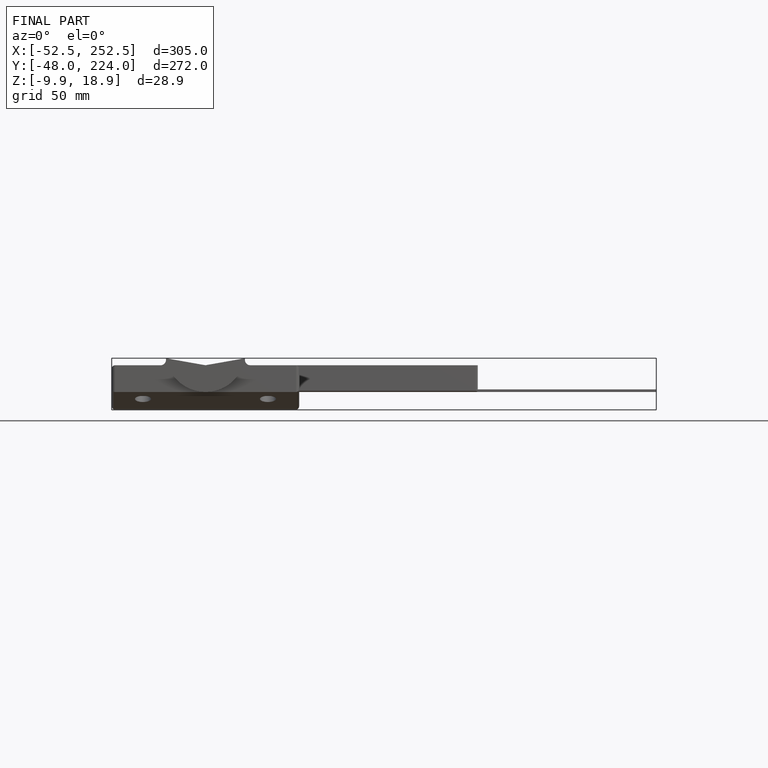
[diagram: finished part — front view with bounding-box wireframe]
